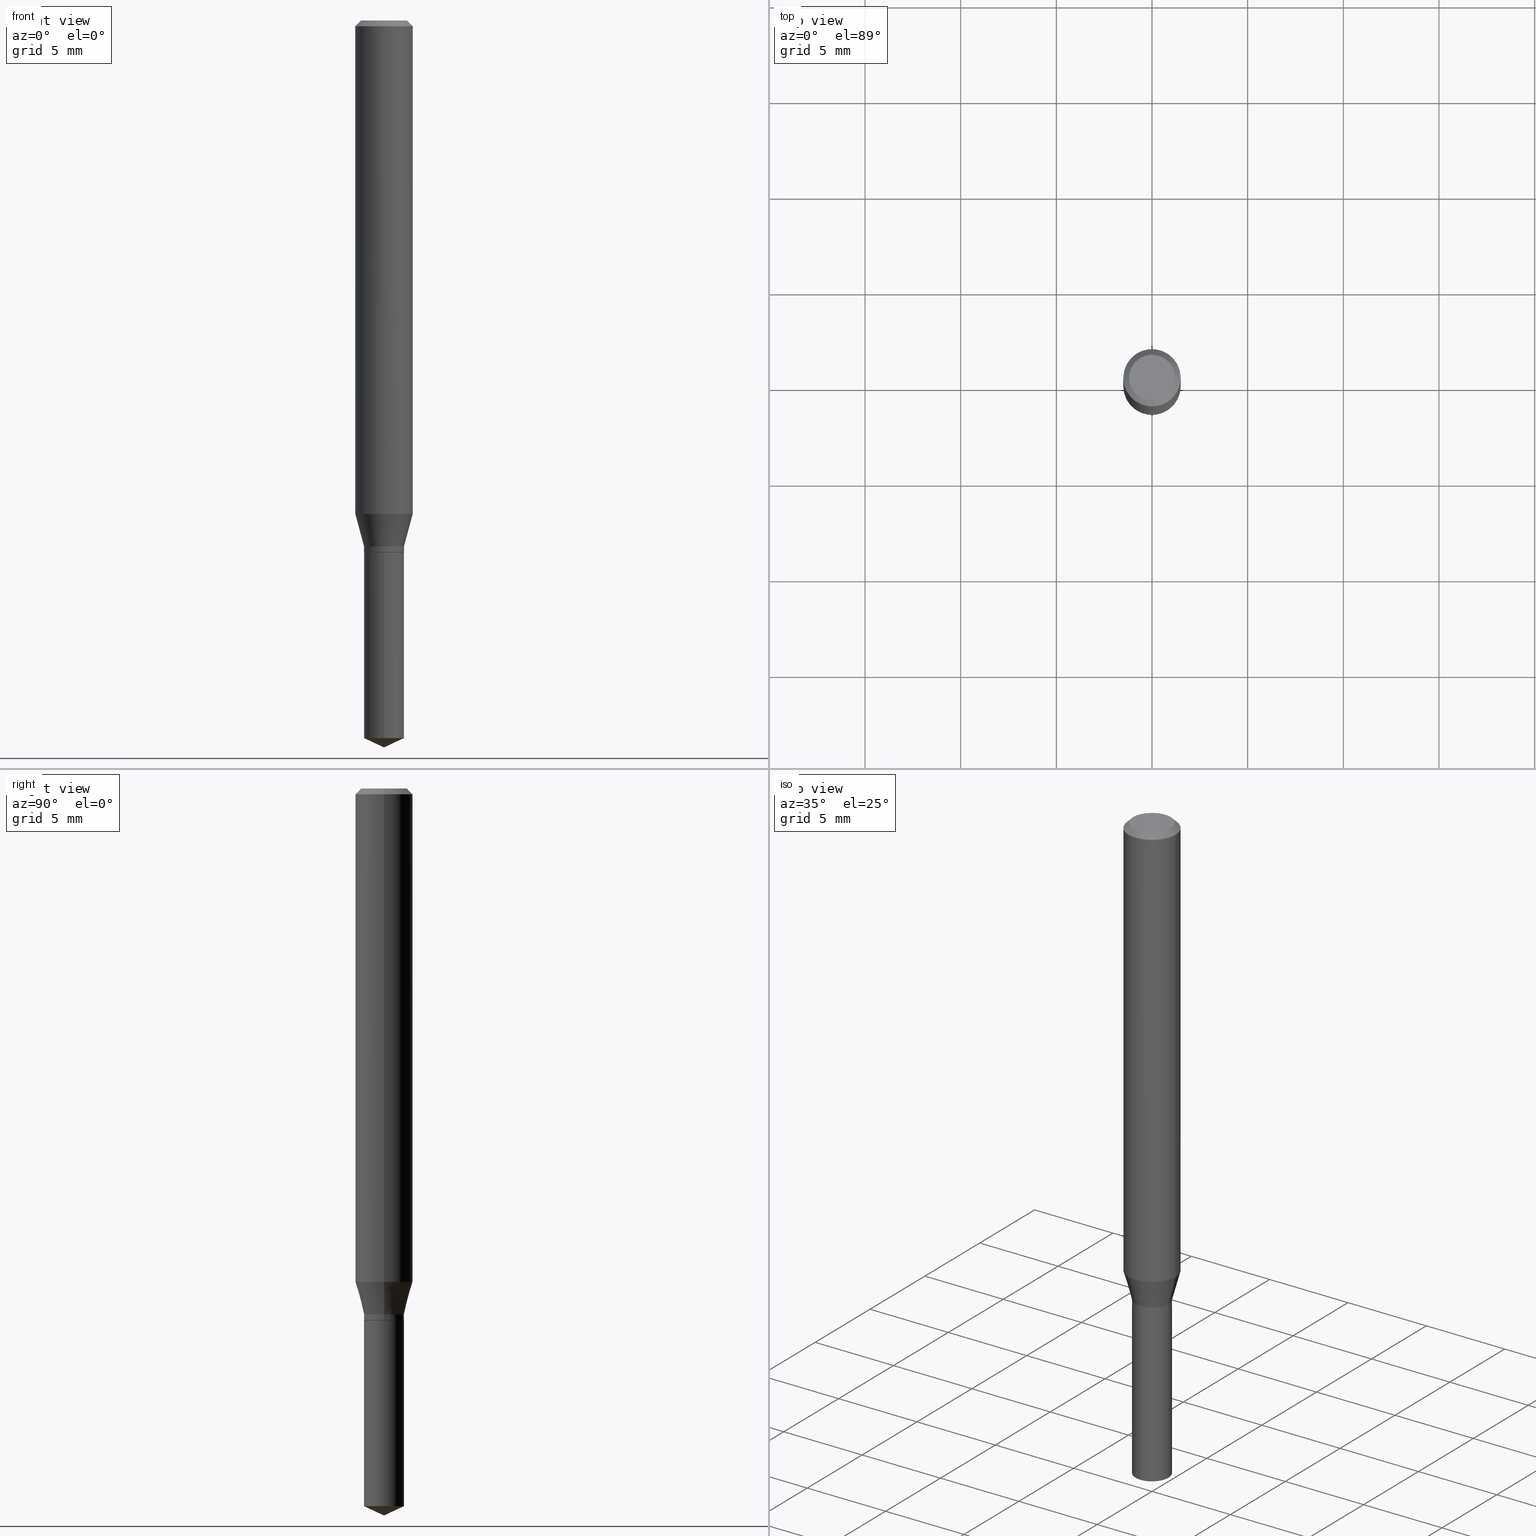
[diagram: canonical four-view strip — front | top / right | iso, engineering-drawing reading convention]
A machine part, canonical four-view strip (front | top / right | iso — engineering-drawing reading convention). The complete STEP part file that produces these views, byte-faithful:
ISO-10303-21;
HEADER;
FILE_DESCRIPTION (( 'STEP AP203' ),
    '1' );
FILE_NAME ('07611.STEP',
    '2024-04-23T23:44:37',
    ( '' ),
    ( '' ),
    'SwSTEP 2.0',
    'SolidWorks 2023',
    '' );
FILE_SCHEMA (( 'CONFIG_CONTROL_DESIGN' ));
ENDSEC;

DATA;
#1 = AXIS2_PLACEMENT_3D ( 'NONE', #198, #205, #444 ) ;
#2 = DATE_AND_TIME ( #344, #239 ) ;
#3 = ORIENTED_EDGE ( 'NONE', *, *, #184, .T. ) ;
#4 = ORIENTED_EDGE ( 'NONE', *, *, #128, .T. ) ;
#5 =( CONVERSION_BASED_UNIT ( 'INCH', #272 ) LENGTH_UNIT ( ) NAMED_UNIT ( #25 ) );
#6 = LINE ( 'NONE', #83, #480 ) ;
#7 = CARTESIAN_POINT ( 'NONE',  ( 2.676565608369631794E-29, -3.821426325363822773E-15, -1.094499999999999806 ) ) ;
#8 = EDGE_CURVE ( 'NONE', #144, #260, #29, .T. ) ;
#9 = PERSON_AND_ORGANIZATION ( #112, #459 ) ;
#10 = DIRECTION ( 'NONE',  ( 1.000000000000000000, -6.982962677686263555E-15, 0.000000000000000000 ) ) ;
#11 = ORIENTED_EDGE ( 'NONE', *, *, #39, .T. ) ;
#12 = PERSON_AND_ORGANIZATION ( #112, #459 ) ;
#13 = DIRECTION ( 'NONE',  ( 1.000000000000000000, -6.982962677686262766E-15, 0.000000000000000000 ) ) ;
#14 = DIRECTION ( 'NONE',  ( 0.7071067811865454633, -7.319954787623248157E-15, -0.7071067811865495711 ) ) ;
#15 = DIRECTION ( 'NONE',  ( -2.445468806185136597E-29, 3.491481338843145583E-15, 1.000000000000000000 ) ) ;
#16 = AXIS2_PLACEMENT_3D ( 'NONE', #195, #394, #48 ) ;
#17 = LINE ( 'NONE', #246, #256 ) ;
#18 = COORDINATED_UNIVERSAL_TIME_OFFSET ( 5, 0, .BEHIND. ) ;
#19 = DIRECTION ( 'NONE',  ( 1.000000000000000000, -6.982962677686265133E-15, 0.000000000000000000 ) ) ;
#20 = ORIENTED_EDGE ( 'NONE', *, *, #294, .F. ) ;
#21 = CARTESIAN_POINT ( 'NONE',  ( 2.483119954442715562E-29, -3.545237199966733054E-15, -1.015396290544516855 ) ) ;
#22 = VERTEX_POINT ( 'NONE', #147 ) ;
#23 = LOCAL_TIME ( 19, 44, 37.00000000000000000, #113 ) ;
#24 = LINE ( 'NONE', #261, #208 ) ;
#25 = DIMENSIONAL_EXPONENTS ( 1.000000000000000000, 0.000000000000000000, 0.000000000000000000, 0.000000000000000000, 0.000000000000000000, 0.000000000000000000, 0.000000000000000000 ) ;
#26 = DIRECTION ( 'NONE',  ( -2.445468806185136597E-29, 3.491481338843145583E-15, 1.000000000000000000 ) ) ;
#27 = ADVANCED_FACE ( 'NONE', ( #445 ), #253, .T. ) ;
#28 = VECTOR ( 'NONE', #70, 39.37007874015748143 ) ;
#29 = LINE ( 'NONE', #212, #28 ) ;
#30 = DIRECTION ( 'NONE',  ( -2.445468806185136597E-29, 3.491481338843145583E-15, 1.000000000000000000 ) ) ;
#31 = VERTEX_POINT ( 'NONE', #106 ) ;
#32 = ORIENTED_EDGE ( 'NONE', *, *, #367, .T. ) ;
#33 = EDGE_LOOP ( 'NONE', ( #368, #104, #11, #186 ) ) ;
#34 = CC_DESIGN_PERSON_AND_ORGANIZATION_ASSIGNMENT ( #175, #292, ( #55 ) ) ;
#35 = AXIS2_PLACEMENT_3D ( 'NONE', #209, #170, #248 ) ;
#36 = LOCAL_TIME ( 19, 44, 37.00000000000000000, #18 ) ;
#37 = CARTESIAN_POINT ( 'NONE',  ( 3.658651059288794515E-29, -5.223626456482161457E-15, -1.496099999999999985 ) ) ;
#38 = ORIENTED_EDGE ( 'NONE', *, *, #91, .T. ) ;
#39 = EDGE_CURVE ( 'NONE', #31, #334, #262, .T. ) ;
#40 = LINE ( 'NONE', #433, #330 ) ;
#41 = CARTESIAN_POINT ( 'NONE',  ( -0.04724000000000000421, 3.504923541997677355E-16, -3.380025165670481712E-19 ) ) ;
#42 = APPROVAL ( #85, 'UNSPECIFIED' ) ;
#43 = VERTEX_POINT ( 'NONE', #350 ) ;
#44 = FACE_OUTER_BOUND ( 'NONE', #296, .T. ) ;
#45 = CONICAL_SURFACE ( 'NONE', #101, 0.05905000000000000526, 0.7853981633974453924 ) ;
#46 = CARTESIAN_POINT ( 'NONE',  ( -0.05905000000000006771, 4.195754854663396409E-16, -2.904631170795525045E-30 ) ) ;
#47 = APPLICATION_CONTEXT ( 'configuration controlled 3d designs of mechanical parts and assemblies' ) ;
#48 = DIRECTION ( 'NONE',  ( 1.000000000000000000, -6.982962677686263555E-15, 0.000000000000000000 ) ) ;
#49 = CALENDAR_DATE ( 2024, 23, 4 ) ;
#50 = CARTESIAN_POINT ( 'NONE',  ( 0.05905000000000000526, -4.535783407291119586E-16, -0.01181000000000007565 ) ) ;
#51 = CC_DESIGN_DATE_AND_TIME_ASSIGNMENT ( #92, #245, ( #55 ) ) ;
#52 = PERSON_AND_ORGANIZATION ( #112, #459 ) ;
#53 = CARTESIAN_POINT ( 'NONE',  ( 2.676565608369631794E-29, -3.821426325363822773E-15, -1.094499999999999806 ) ) ;
#54 = CIRCLE ( 'NONE', #202, 0.04114999999999999908 ) ;
#55 = SECURITY_CLASSIFICATION ( '', '', #250 ) ;
#56 = APPROVAL_STATUS ( 'not_yet_approved' ) ;
#57 = PLANE ( 'NONE',  #469 ) ;
#58 = VERTEX_POINT ( 'NONE', #472 ) ;
#59 = FACE_OUTER_BOUND ( 'NONE', #33, .T. ) ;
#60 = ORIENTED_EDGE ( 'NONE', *, *, #317, .F. ) ;
#61 = DIRECTION ( 'NONE',  ( -6.982962677686265922E-15, -1.000000000000000000, 3.319377878085374529E-15 ) ) ;
#62 = CONICAL_SURFACE ( 'NONE', #169, 0.04114999999999999908, 0.2617993877991501295 ) ;
#63 = CARTESIAN_POINT ( 'NONE',  ( 0.000000000000000000, 0.000000000000000000, 0.000000000000000000 ) ) ;
#64 = CARTESIAN_POINT ( 'NONE',  ( -0.04114999999999999908, -3.486092769130770840E-15, -1.082200000000000051 ) ) ;
#65 = ORIENTED_EDGE ( 'NONE', *, *, #232, .F. ) ;
#66 = CARTESIAN_POINT ( 'NONE',  ( -0.05905000000000013016, -3.125661714500392772E-15, -1.015396290544516855 ) ) ;
#67 = VERTEX_POINT ( 'NONE', #41 ) ;
#68 = CONICAL_SURFACE ( 'NONE', #35, 0.04114999999999999908, 0.2617993877991501295 ) ;
#69 = FACE_OUTER_BOUND ( 'NONE', #234, .T. ) ;
#70 = DIRECTION ( 'NONE',  ( -6.328713451373372534E-15, -0.9063077870366488265, 0.4226182617407016062 ) ) ;
#71 = DIRECTION ( 'NONE',  ( -6.982962677686265922E-15, -1.000000000000000000, 6.638755756170749059E-15 ) ) ;
#72 = ORIENTED_EDGE ( 'NONE', *, *, #143, .T. ) ;
#73 = EDGE_CURVE ( 'NONE', #404, #334, #270, .T. ) ;
#74 = CARTESIAN_POINT ( 'NONE',  ( 0.000000000000000000, 0.000000000000000000, 0.000000000000000000 ) ) ;
#75 = FACE_OUTER_BOUND ( 'NONE', #417, .T. ) ;
#76 = ORIENTED_EDGE ( 'NONE', *, *, #89, .F. ) ;
#77 = VECTOR ( 'NONE', #293, 39.37007874015748854 ) ;
#78 = DIRECTION ( 'NONE',  ( -1.000000000000000000, 6.982962677686265922E-15, -4.876176775795935793E-29 ) ) ;
#79 = CC_DESIGN_APPROVAL ( #96, ( #55 ) ) ;
#80 = CARTESIAN_POINT ( 'NONE',  ( 2.675342873966538993E-29, -3.819680584694400481E-15, -1.093999999999999861 ) ) ;
#81 = EDGE_CURVE ( 'NONE', #299, #334, #399, .T. ) ;
#82 = MECHANICAL_CONTEXT ( 'NONE', #47, 'mechanical' ) ;
#83 = CARTESIAN_POINT ( 'NONE',  ( 0.04114999999999999908, -2.873489141867898412E-16, 2.006546743240027604E-30 ) ) ;
#84 = ORIENTED_EDGE ( 'NONE', *, *, #367, .F. ) ;
#85 = APPROVAL_STATUS ( 'not_yet_approved' ) ;
#86 = CIRCLE ( 'NONE', #413, 0.05905000000000013016 ) ;
#87 = DIRECTION ( 'NONE',  ( -6.982962677686265922E-15, -1.000000000000000000, 3.319377878085374529E-15 ) ) ;
#88 = LOCAL_TIME ( 19, 44, 37.00000000000000000, #235 ) ;
#89 = EDGE_CURVE ( 'NONE', #268, #58, #54, .T. ) ;
#90 = CARTESIAN_POINT ( 'NONE',  ( 0.04114999999999999908, -4.065830019082841950E-15, -1.082200000000000051 ) ) ;
#91 = EDGE_CURVE ( 'NONE', #334, #299, #185, .T. ) ;
#92 = DATE_AND_TIME ( #49, #36 ) ;
#93 = FACE_OUTER_BOUND ( 'NONE', #351, .T. ) ;
#94 = EDGE_CURVE ( 'NONE', #43, #268, #6, .T. ) ;
#95 = CARTESIAN_POINT ( 'NONE',  ( 2.676565608369631794E-29, -3.821426325363822773E-15, -1.094499999999999806 ) ) ;
#96 = APPROVAL ( #56, 'UNSPECIFIED' ) ;
#97 = DIRECTION ( 'NONE',  ( -6.982962677686265922E-15, -1.000000000000000000, 3.319377878085374529E-15 ) ) ;
#98 = ORIENTED_EDGE ( 'NONE', *, *, #94, .F. ) ;
#99 = CARTESIAN_POINT ( 'NONE',  ( 2.676565608369631794E-29, -3.821426325363822773E-15, -1.094499999999999806 ) ) ;
#100 = LINE ( 'NONE', #487, #285 ) ;
#101 = AXIS2_PLACEMENT_3D ( 'NONE', #233, #387, #419 ) ;
#102 = AXIS2_PLACEMENT_3D ( 'NONE', #74, #156, #349 ) ;
#103 = CARTESIAN_POINT ( 'NONE',  ( 0.000000000000000000, 0.000000000000000000, 0.000000000000000000 ) ) ;
#104 = ORIENTED_EDGE ( 'NONE', *, *, #317, .T. ) ;
#105 = DIRECTION ( 'NONE',  ( -2.445468806185136597E-29, 3.491481338843145583E-15, 1.000000000000000000 ) ) ;
#106 = CARTESIAN_POINT ( 'NONE',  ( 0.05905000000000013016, -3.957581146084108368E-15, -1.015396290544516855 ) ) ;
#107 = DIRECTION ( 'NONE',  ( 1.000000000000000000, -6.982962677686263555E-15, 0.000000000000000000 ) ) ;
#108 = EDGE_LOOP ( 'NONE', ( #20, #192, #38, #460 ) ) ;
#109 = CIRCLE ( 'NONE', #16, 0.04114999999999999908 ) ;
#110 = CARTESIAN_POINT ( 'NONE',  ( 2.646486342053554932E-29, -3.778481104896052208E-15, -1.082200000000000051 ) ) ;
#111 = ORIENTED_EDGE ( 'NONE', *, *, #187, .T. ) ;
#112 = PERSON ( 'UNSPECIFIED', 'UNSPECIFIED', 'UNSPECIFIED', ('UNSPECIFIED'), ('UNSPECIFIED'), ('UNSPECIFIED') ) ;
#113 = COORDINATED_UNIVERSAL_TIME_OFFSET ( 5, 0, .BEHIND. ) ;
#114 = CYLINDRICAL_SURFACE ( 'NONE', #318, 0.04114999999999999908 ) ;
#115 = ORIENTED_EDGE ( 'NONE', *, *, #232, .T. ) ;
#116 = PERSON_AND_ORGANIZATION ( #112, #459 ) ;
#117 = CARTESIAN_POINT ( 'NONE',  ( 0.05905000000000006771, -4.123439461173745257E-16, 2.879382386107503723E-30 ) ) ;
#118 = ORIENTED_EDGE ( 'NONE', *, *, #294, .T. ) ;
#119 = CONICAL_SURFACE ( 'NONE', #275, 84.42940631927420725, 1.134464013796315340 ) ;
#120 = APPLICATION_PROTOCOL_DEFINITION ( 'international standard', 'config_control_design', 1994, #47 ) ;
#121 = FACE_OUTER_BOUND ( 'NONE', #348, .T. ) ;
#122 = EDGE_LOOP ( 'NONE', ( #302, #111 ) ) ;
#123 = CARTESIAN_POINT ( 'NONE',  ( 2.646486342053554932E-29, -3.778481104896052208E-15, -1.082200000000000051 ) ) ;
#124 = CYLINDRICAL_SURFACE ( 'NONE', #102, 0.04114999999999999908 ) ;
#125 = DIRECTION ( 'NONE',  ( -2.445458899330790108E-29, 3.491495526022433599E-15, 1.000000000000000000 ) ) ;
#126 = VECTOR ( 'NONE', #224, 39.37007874015748854 ) ;
#127 = CARTESIAN_POINT ( 'NONE',  ( 8.265746106709734507E-48, -1.180129479067563789E-33, -3.380025165646692144E-19 ) ) ;
#128 = EDGE_CURVE ( 'NONE', #345, #299, #390, .T. ) ;
#129 = AXIS2_PLACEMENT_3D ( 'NONE', #103, #410, #454 ) ;
#130 = ADVANCED_FACE ( 'NONE', ( #361 ), #357, .T. ) ;
#131 = DIRECTION ( 'NONE',  ( -2.445468806185136597E-29, 3.491481338843145583E-15, 1.000000000000000000 ) ) ;
#132 = CC_DESIGN_PERSON_AND_ORGANIZATION_ASSIGNMENT ( #12, #163, ( #291 ) ) ;
#133 = DIRECTION ( 'NONE',  ( 1.000000000000000000, -6.982962677686266711E-15, 4.876176775795936353E-29 ) ) ;
#134 = AXIS2_PLACEMENT_3D ( 'NONE', #180, #207, #133 ) ;
#135 = ORIENTED_EDGE ( 'NONE', *, *, #452, .F. ) ;
#136 = CARTESIAN_POINT ( 'NONE',  ( -0.05905000000000000526, -1.373660311822895307E-15, -0.01181000000000007565 ) ) ;
#137 = DIRECTION ( 'NONE',  ( -2.445458899330790108E-29, 3.491495526022433205E-15, 1.000000000000000000 ) ) ;
#138 = DIRECTION ( 'NONE',  ( -2.445458899330790108E-29, 3.491495526022433205E-15, 1.000000000000000000 ) ) ;
#139 = CC_DESIGN_PERSON_AND_ORGANIZATION_ASSIGNMENT ( #9, #197, ( #191 ) ) ;
#140 = CIRCLE ( 'NONE', #220, 0.04724000000000000421 ) ;
#141 = LOCAL_TIME ( 19, 44, 37.00000000000000000, #326 ) ;
#142 = FACE_OUTER_BOUND ( 'NONE', #483, .T. ) ;
#143 = EDGE_CURVE ( 'NONE', #305, #43, #247, .T. ) ;
#144 = VERTEX_POINT ( 'NONE', #37 ) ;
#145 = ADVANCED_FACE ( 'NONE', ( #121 ), #114, .T. ) ;
#146 = DIRECTION ( 'NONE',  ( 2.445468806185136597E-29, -3.491481338843145583E-15, -1.000000000000000000 ) ) ;
#147 = CARTESIAN_POINT ( 'NONE',  ( -0.04064999999999999863, -3.529941476103230709E-15, -1.094499999999999806 ) ) ;
#148 = AXIS2_PLACEMENT_3D ( 'NONE', #7, #426, #389 ) ;
#149 = DATE_TIME_ROLE ( 'creation_date' ) ;
#150 = ORIENTED_EDGE ( 'NONE', *, *, #252, .F. ) ;
#151 = ORIENTED_EDGE ( 'NONE', *, *, #336, .T. ) ;
#152 =( NAMED_UNIT ( * ) SI_UNIT ( $, .STERADIAN. ) SOLID_ANGLE_UNIT ( ) );
#153 = DIRECTION ( 'NONE',  ( -0.7071067811865454633, 2.468850131082235367E-15, -0.7071067811865495711 ) ) ;
#154 = ADVANCED_FACE ( 'NONE', ( #278 ), #45, .T. ) ;
#155 = VERTEX_POINT ( 'NONE', #161 ) ;
#156 = DIRECTION ( 'NONE',  ( -2.445468806185136597E-29, 3.491481338843145583E-15, 1.000000000000000000 ) ) ;
#157 = ORIENTED_EDGE ( 'NONE', *, *, #184, .F. ) ;
#158 = CONICAL_SURFACE ( 'NONE', #442, 0.04064999999999999863, 0.7853981633974141952 ) ;
#159 = VECTOR ( 'NONE', #325, 39.37007874015748143 ) ;
#160 = CARTESIAN_POINT ( 'NONE',  ( -9.261924752013118283E-28, 1.322368428517963298E-13, 37.87397874015748300 ) ) ;
#161 = CARTESIAN_POINT ( 'NONE',  ( 0.04064999999999999863, -4.105283758211769509E-15, -1.094499999999999806 ) ) ;
#162 = ORIENTED_EDGE ( 'NONE', *, *, #440, .T. ) ;
#163 = PERSON_AND_ORGANIZATION_ROLE ( 'creator' ) ;
#164 = DIRECTION ( 'NONE',  ( -2.445458899330790108E-29, 3.491495526022433205E-15, 1.000000000000000000 ) ) ;
#165 = EDGE_CURVE ( 'NONE', #174, #223, #431, .T. ) ;
#166 = DIRECTION ( 'NONE',  ( 1.000000000000000000, -6.982962677686268288E-15, 0.000000000000000000 ) ) ;
#167 = AXIS2_PLACEMENT_3D ( 'NONE', #236, #273, #200 ) ;
#168 = CARTESIAN_POINT ( 'NONE',  ( 2.676565608369631794E-29, -3.821426325363822773E-15, -1.094499999999999806 ) ) ;
#169 = AXIS2_PLACEMENT_3D ( 'NONE', #110, #26, #107 ) ;
#170 = DIRECTION ( 'NONE',  ( -2.445468806185136597E-29, 3.491481338843145583E-15, 1.000000000000000000 ) ) ;
#171 = EDGE_CURVE ( 'NONE', #67, #299, #40, .T. ) ;
#172 = PERSON_AND_ORGANIZATION_ROLE ( 'creator' ) ;
#173 = FACE_OUTER_BOUND ( 'NONE', #375, .T. ) ;
#174 = VERTEX_POINT ( 'NONE', #241 ) ;
#175 = PERSON_AND_ORGANIZATION ( #112, #459 ) ;
#176 = CYLINDRICAL_SURFACE ( 'NONE', #134, 0.05905000000000006771 ) ;
#177 = CC_DESIGN_SECURITY_CLASSIFICATION ( #55, ( #301 ) ) ;
#178 = ORIENTED_EDGE ( 'NONE', *, *, #252, .T. ) ;
#179 = EDGE_CURVE ( 'NONE', #58, #268, #109, .T. ) ;
#180 = CARTESIAN_POINT ( 'NONE',  ( 0.000000000000000000, 0.000000000000000000, 0.000000000000000000 ) ) ;
#181 = ADVANCED_FACE ( 'NONE', ( #75 ), #382, .F. ) ;
#182 = CYLINDRICAL_SURFACE ( 'NONE', #194, 0.05905000000000006771 ) ;
#183 = DIRECTION ( 'NONE',  ( -2.445468806185136597E-29, 3.491481338843145583E-15, 1.000000000000000000 ) ) ;
#184 = EDGE_CURVE ( 'NONE', #305, #58, #401, .T. ) ;
#185 = CIRCLE ( 'NONE', #228, 0.05905000000000000526 ) ;
#186 = ORIENTED_EDGE ( 'NONE', *, *, #81, .F. ) ;
#187 = EDGE_CURVE ( 'NONE', #223, #412, #391, .T. ) ;
#188 = DIRECTION ( 'NONE',  ( -6.982962677686265922E-15, -1.000000000000000000, 6.638755756170749059E-15 ) ) ;
#189 = EDGE_LOOP ( 'NONE', ( #32, #311, #312, #313 ) ) ;
#190 = APPROVAL_ROLE ( '' ) ;
#191 = PRODUCT ( '07611', '07611', '', ( #82 ) ) ;
#192 = ORIENTED_EDGE ( 'NONE', *, *, #73, .T. ) ;
#193 = EDGE_LOOP ( 'NONE', ( #376, #402, #150, #328 ) ) ;
#194 = AXIS2_PLACEMENT_3D ( 'NONE', #63, #30, #485 ) ;
#195 = CARTESIAN_POINT ( 'NONE',  ( 2.646486342053554932E-29, -3.778481104896052208E-15, -1.082200000000000051 ) ) ;
#196 = ORIENTED_EDGE ( 'NONE', *, *, #466, .T. ) ;
#197 = PERSON_AND_ORGANIZATION_ROLE ( 'design_owner' ) ;
#198 = CARTESIAN_POINT ( 'NONE',  ( 2.676565608369631794E-29, -3.821426325363822773E-15, -1.094499999999999806 ) ) ;
#199 = ORIENTED_EDGE ( 'NONE', *, *, #94, .T. ) ;
#200 = DIRECTION ( 'NONE',  ( 1.000000000000000000, -6.982962677686268288E-15, 0.000000000000000000 ) ) ;
#201 = ORIENTED_EDGE ( 'NONE', *, *, #8, .F. ) ;
#202 = AXIS2_PLACEMENT_3D ( 'NONE', #123, #204, #422 ) ;
#203 = APPROVAL_DATE_TIME ( #360, #42 ) ;
#204 = DIRECTION ( 'NONE',  ( -2.445468806185136597E-29, 3.491481338843145583E-15, 1.000000000000000000 ) ) ;
#205 = DIRECTION ( 'NONE',  ( -2.438088387897960049E-29, 3.491481338843145188E-15, 1.000000000000000000 ) ) ;
#206 = APPROVAL_DATE_TIME ( #324, #96 ) ;
#207 = DIRECTION ( 'NONE',  ( -2.445468806185136597E-29, 3.491481338843145583E-15, 1.000000000000000000 ) ) ;
#208 = VECTOR ( 'NONE', #222, 39.37007874015748854 ) ;
#209 = CARTESIAN_POINT ( 'NONE',  ( 2.646486342053554932E-29, -3.778481104896052208E-15, -1.082200000000000051 ) ) ;
#210 = CIRCLE ( 'NONE', #347, 0.04724000000000000421 ) ;
#211 = CARTESIAN_POINT ( 'NONE',  ( 2.676565608369631794E-29, -3.821426325363822773E-15, -1.094499999999999806 ) ) ;
#212 = CARTESIAN_POINT ( 'NONE',  ( 3.658651059288795076E-29, -5.223626456482161457E-15, -1.496099999999999985 ) ) ;
#213 = ORIENTED_EDGE ( 'NONE', *, *, #400, .F. ) ;
#214 = VECTOR ( 'NONE', #14, 39.37007874015748143 ) ;
#215 = AXIS2_PLACEMENT_3D ( 'NONE', #372, #438, #396 ) ;
#216 = ADVANCED_FACE ( 'NONE', ( #93 ), #68, .T. ) ;
#217 = DIRECTION ( 'NONE',  ( -2.445458899330790108E-29, 3.491495526022433205E-15, 1.000000000000000000 ) ) ;
#218 = EDGE_CURVE ( 'NONE', #268, #31, #17, .T. ) ;
#219 = ORIENTED_EDGE ( 'NONE', *, *, #466, .F. ) ;
#220 = AXIS2_PLACEMENT_3D ( 'NONE', #127, #15, #482 ) ;
#221 = AXIS2_PLACEMENT_3D ( 'NONE', #489, #146, #306 ) ;
#222 = DIRECTION ( 'NONE',  ( -0.7071067811865232589, 7.493145998870265808E-15, 0.7071067811865715536 ) ) ;
#223 = VERTEX_POINT ( 'NONE', #398 ) ;
#224 = DIRECTION ( 'NONE',  ( 0.7071067811865232589, -2.468850131082003836E-15, 0.7071067811865715536 ) ) ;
#225 = ORIENTED_EDGE ( 'NONE', *, *, #179, .F. ) ;
#226 = DIRECTION ( 'NONE',  ( -2.445468806185136597E-29, 3.491481338843145583E-15, 1.000000000000000000 ) ) ;
#227 = EDGE_LOOP ( 'NONE', ( #213, #196, #470, #340 ) ) ;
#228 = AXIS2_PLACEMENT_3D ( 'NONE', #355, #468, #166 ) ;
#229 = ADVANCED_FACE ( 'NONE', ( #365 ), #158, .T. ) ;
#230 = AXIS2_PLACEMENT_3D ( 'NONE', #421, #393, #78 ) ;
#231 = DIRECTION ( 'NONE',  ( 0.000000000000000000, 0.000000000000000000, 1.000000000000000000 ) ) ;
#232 = EDGE_CURVE ( 'NONE', #155, #22, #300, .T. ) ;
#233 = CARTESIAN_POINT ( 'NONE',  ( 2.888098660104664642E-31, -4.123439461173780879E-17, -0.01181000000000007565 ) ) ;
#234 = EDGE_LOOP ( 'NONE', ( #178, #4, #488, #456 ) ) ;
#235 = COORDINATED_UNIVERSAL_TIME_OFFSET ( 5, 0, .BEHIND. ) ;
#236 = CARTESIAN_POINT ( 'NONE',  ( 2.888098660104664642E-31, -4.123439461173780879E-17, -0.01181000000000007565 ) ) ;
#237 = EDGE_CURVE ( 'NONE', #144, #174, #363, .T. ) ;
#238 = AXIS2_PLACEMENT_3D ( 'NONE', #80, #428, #10 ) ;
#239 = LOCAL_TIME ( 19, 44, 37.00000000000000000, #283 ) ;
#240 = CALENDAR_DATE ( 2024, 23, 4 ) ;
#241 = CARTESIAN_POINT ( 'NONE',  ( 2.923883357653172610E-16, 0.04114999999999483654, -1.476911439866922082 ) ) ;
#242 = PERSON_AND_ORGANIZATION ( #112, #459 ) ;
#243 = DIRECTION ( 'NONE',  ( 1.000000000000000000, -6.982962677686262766E-15, 0.000000000000000000 ) ) ;
#244 = ADVANCED_FACE ( 'NONE', ( #441 ), #57, .F. ) ;
#245 = DATE_TIME_ROLE ( 'classification_date' ) ;
#246 = CARTESIAN_POINT ( 'NONE',  ( 0.04114999999999999908, -4.065830019082841950E-15, -1.082200000000000051 ) ) ;
#247 = CIRCLE ( 'NONE', #238, 0.04114999999999999908 ) ;
#248 = DIRECTION ( 'NONE',  ( 1.000000000000000000, -6.982962677686263555E-15, 0.000000000000000000 ) ) ;
#249 = ORIENTED_EDGE ( 'NONE', *, *, #8, .T. ) ;
#250 = SECURITY_CLASSIFICATION_LEVEL ( 'unclassified' ) ;
#251 = DIRECTION ( 'NONE',  ( -2.445468806185136597E-29, 3.491481338843145583E-15, 1.000000000000000000 ) ) ;
#252 = EDGE_CURVE ( 'NONE', #31, #345, #86, .T. ) ;
#253 = CYLINDRICAL_SURFACE ( 'NONE', #435, 0.04114999999999999908 ) ;
#254 = CARTESIAN_POINT ( 'NONE',  ( -0.04114999999999999908, 2.923883357652812199E-16, -2.024141789639893566E-30 ) ) ;
#255 = DIRECTION ( 'NONE',  ( -2.445458899330790108E-29, 3.491495526022433599E-15, 1.000000000000000000 ) ) ;
#256 = VECTOR ( 'NONE', #478, 39.37007874015747433 ) ;
#257 = AXIS2_PLACEMENT_3D ( 'NONE', #337, #105, #258 ) ;
#258 = DIRECTION ( 'NONE',  ( 1.000000000000000000, -6.982962677686263555E-15, 0.000000000000000000 ) ) ;
#259 = ADVANCED_FACE ( 'NONE', ( #173 ), #119, .T. ) ;
#260 = VERTEX_POINT ( 'NONE', #479 ) ;
#261 = CARTESIAN_POINT ( 'NONE',  ( -0.04064999999999999863, -3.532590703277341910E-15, -1.094499999999999806 ) ) ;
#262 = LINE ( 'NONE', #117, #315 ) ;
#263 = CARTESIAN_POINT ( 'NONE',  ( 8.265746106709734507E-48, -1.180129479067563789E-33, -3.380025165646692144E-19 ) ) ;
#264 = CLOSED_SHELL ( 'NONE', ( #130, #154, #362, #406, #447, #471, #216, #271, #455, #463, #181, #229 ) ) ;
#265 = EDGE_LOOP ( 'NONE', ( #462, #416, #342, #274 ) ) ;
#266 = MANIFOLD_SOLID_BREP ( 'Body-Move/Copy2[1]', #467 ) ;
#267 = PLANE ( 'NONE',  #230 ) ;
#268 = VERTEX_POINT ( 'NONE', #90 ) ;
#269 = CALENDAR_DATE ( 2024, 23, 4 ) ;
#270 = LINE ( 'NONE', #323, #214 ) ;
#271 = ADVANCED_FACE ( 'NONE', ( #59 ), #176, .T. ) ;
#272 = LENGTH_MEASURE_WITH_UNIT ( LENGTH_MEASURE( 0.02539999999999999897 ), #320 );
#273 = DIRECTION ( 'NONE',  ( -2.445468806185136597E-29, 3.491481338843145583E-15, 1.000000000000000000 ) ) ;
#274 = ORIENTED_EDGE ( 'NONE', *, *, #81, .T. ) ;
#275 = AXIS2_PLACEMENT_3D ( 'NONE', #473, #288, #333 ) ;
#276 = CC_DESIGN_APPROVAL ( #42, ( #291 ) ) ;
#277 = FACE_OUTER_BOUND ( 'NONE', #279, .T. ) ;
#278 = FACE_OUTER_BOUND ( 'NONE', #108, .T. ) ;
#279 = EDGE_LOOP ( 'NONE', ( #157, #72, #199, #225 ) ) ;
#280 = CC_DESIGN_DATE_AND_TIME_ASSIGNMENT ( #2, #149, ( #291 ) ) ;
#281 = PERSON_AND_ORGANIZATION ( #112, #459 ) ;
#282 = DIRECTION ( 'NONE',  ( -2.445468806185136877E-29, 3.491481338843145188E-15, 1.000000000000000000 ) ) ;
#283 = COORDINATED_UNIVERSAL_TIME_OFFSET ( 5, 0, .BEHIND. ) ;
#284 = CARTESIAN_POINT ( 'NONE',  ( 2.676565608369631794E-29, -3.821426325363822773E-15, -1.094499999999999806 ) ) ;
#285 = VECTOR ( 'NONE', #255, 39.37007874015748143 ) ;
#286 = APPROVAL_PERSON_ORGANIZATION ( #281, #42, #190 ) ;
#287 = APPROVAL_DATE_TIME ( #418, #415 ) ;
#288 = DIRECTION ( 'NONE',  ( -2.445458899330790108E-29, 3.491495526022433205E-15, 1.000000000000000000 ) ) ;
#289 = DESIGN_CONTEXT ( 'detailed design', #427, 'design' ) ;
#290 = SHAPE_DEFINITION_REPRESENTATION ( #343, #449 ) ;
#291 = PRODUCT_DEFINITION ( 'UNKNOWN', '', #301, #289 ) ;
#292 = PERSON_AND_ORGANIZATION_ROLE ( 'classification_officer' ) ;
#293 = DIRECTION ( 'NONE',  ( 6.439704144417027987E-15, 0.9063077870366519351, 0.4226182617406953335 ) ) ;
#294 = EDGE_CURVE ( 'NONE', #404, #67, #140, .T. ) ;
#295 = VECTOR ( 'NONE', #374, 39.37007874015747433 ) ;
#296 = EDGE_LOOP ( 'NONE', ( #201, #425, #84 ) ) ;
#297 = CC_DESIGN_PERSON_AND_ORGANIZATION_ASSIGNMENT ( #52, #172, ( #301 ) ) ;
#298 = CARTESIAN_POINT ( 'NONE',  ( -0.04114999999999999908, -3.506692509029945371E-15, -1.093999999999999861 ) ) ;
#299 = VERTEX_POINT ( 'NONE', #136 ) ;
#300 = CIRCLE ( 'NONE', #308, 0.04064999999999999863 ) ;
#301 = PRODUCT_DEFINITION_FORMATION_WITH_SPECIFIED_SOURCE ( 'ANY', '', #191, .NOT_KNOWN. ) ;
#302 = ORIENTED_EDGE ( 'NONE', *, *, #310, .T. ) ;
#303 = FACE_OUTER_BOUND ( 'NONE', #193, .T. ) ;
#304 = LINE ( 'NONE', #64, #295 ) ;
#305 = VERTEX_POINT ( 'NONE', #298 ) ;
#306 = DIRECTION ( 'NONE',  ( -1.000000000000000000, 6.982962677686265922E-15, 0.000000000000000000 ) ) ;
#307 = ORIENTED_EDGE ( 'NONE', *, *, #434, .T. ) ;
#308 = AXIS2_PLACEMENT_3D ( 'NONE', #99, #131, #243 ) ;
#309 = APPROVAL_STATUS ( 'not_yet_approved' ) ;
#310 = EDGE_CURVE ( 'NONE', #412, #223, #436, .T. ) ;
#311 = ORIENTED_EDGE ( 'NONE', *, *, #165, .T. ) ;
#312 = ORIENTED_EDGE ( 'NONE', *, *, #310, .F. ) ;
#313 = ORIENTED_EDGE ( 'NONE', *, *, #336, .F. ) ;
#314 = DIRECTION ( 'NONE',  ( -2.445468806185136877E-29, 3.491481338843145188E-15, 1.000000000000000000 ) ) ;
#315 = VECTOR ( 'NONE', #314, 39.37007874015748143 ) ;
#316 = EDGE_LOOP ( 'NONE', ( #115, #453, #490, #420 ) ) ;
#317 = EDGE_CURVE ( 'NONE', #345, #31, #338, .T. ) ;
#318 = AXIS2_PLACEMENT_3D ( 'NONE', #386, #164, #87 ) ;
#319 =( GEOMETRIC_REPRESENTATION_CONTEXT ( 3 ) GLOBAL_UNCERTAINTY_ASSIGNED_CONTEXT ( ( #356 ) ) GLOBAL_UNIT_ASSIGNED_CONTEXT ( ( #5, #352, #152 ) ) REPRESENTATION_CONTEXT ( 'NONE', 'WORKASPACE' ) );
#320 =( LENGTH_UNIT ( ) NAMED_UNIT ( * ) SI_UNIT ( $, .METRE. ) );
#321 = EDGE_LOOP ( 'NONE', ( #307, #118 ) ) ;
#322 = CARTESIAN_POINT ( 'NONE',  ( 2.923883357653079426E-16, 0.04114999999999617575, -1.094500000000000028 ) ) ;
#323 = CARTESIAN_POINT ( 'NONE',  ( 0.05905000000000000526, -4.463468013801467941E-16, -0.01181000000000007565 ) ) ;
#324 = DATE_AND_TIME ( #477, #141 ) ;
#325 = DIRECTION ( 'NONE',  ( -2.445468806185136877E-29, 3.491481338843145188E-15, 1.000000000000000000 ) ) ;
#326 = COORDINATED_UNIVERSAL_TIME_OFFSET ( 5, 0, .BEHIND. ) ;
#327 = DIRECTION ( 'NONE',  ( -2.445458899330790108E-29, 3.491495526022433205E-15, 1.000000000000000000 ) ) ;
#328 = ORIENTED_EDGE ( 'NONE', *, *, #218, .F. ) ;
#329 = CC_DESIGN_PERSON_AND_ORGANIZATION_ASSIGNMENT ( #395, #439, ( #301 ) ) ;
#330 = VECTOR ( 'NONE', #153, 39.37007874015748143 ) ;
#331 = APPROVAL_ROLE ( '' ) ;
#332 = CIRCLE ( 'NONE', #148, 0.04064999999999999863 ) ;
#333 = DIRECTION ( 'NONE',  ( -6.982962677686266711E-15, -1.000000000000000000, 3.520397390770459392E-15 ) ) ;
#334 = VERTEX_POINT ( 'NONE', #50 ) ;
#335 = CARTESIAN_POINT ( 'NONE',  ( -2.873489141867631186E-16, -0.04115000000000382241, -1.094499999999999806 ) ) ;
#336 = EDGE_CURVE ( 'NONE', #260, #412, #100, .T. ) ;
#337 = CARTESIAN_POINT ( 'NONE',  ( 2.675342873966538993E-29, -3.819680584694400481E-15, -1.093999999999999861 ) ) ;
#338 = CIRCLE ( 'NONE', #215, 0.05905000000000013016 ) ;
#339 = CONICAL_SURFACE ( 'NONE', #424, 84.42940631927420725, 1.134464013796315340 ) ;
#340 = ORIENTED_EDGE ( 'NONE', *, *, #143, .F. ) ;
#341 = FACE_OUTER_BOUND ( 'NONE', #265, .T. ) ;
#342 = ORIENTED_EDGE ( 'NONE', *, *, #171, .T. ) ;
#343 = PRODUCT_DEFINITION_SHAPE ( 'NONE', 'NONE',  #291 ) ;
#344 = CALENDAR_DATE ( 2024, 23, 4 ) ;
#345 = VERTEX_POINT ( 'NONE', #66 ) ;
#346 = AXIS2_PLACEMENT_3D ( 'NONE', #95, #327, #97 ) ;
#347 = AXIS2_PLACEMENT_3D ( 'NONE', #263, #183, #377 ) ;
#348 = EDGE_LOOP ( 'NONE', ( #429, #358, #151, #388 ) ) ;
#349 = DIRECTION ( 'NONE',  ( 1.000000000000000000, -6.982962677686265922E-15, 4.876176775795935793E-29 ) ) ;
#350 = CARTESIAN_POINT ( 'NONE',  ( 0.04114999999999999908, -4.107029498881190224E-15, -1.093999999999999861 ) ) ;
#351 = EDGE_LOOP ( 'NONE', ( #384, #381, #481, #60 ) ) ;
#352 =( NAMED_UNIT ( * ) PLANE_ANGLE_UNIT ( ) SI_UNIT ( $, .RADIAN. ) );
#353 = EDGE_CURVE ( 'NONE', #155, #43, #380, .T. ) ;
#354 = CARTESIAN_POINT ( 'NONE',  ( 0.000000000000000000, 0.000000000000000000, 0.000000000000000000 ) ) ;
#355 = CARTESIAN_POINT ( 'NONE',  ( 2.888098660104664642E-31, -4.123439461173780879E-17, -0.01181000000000007565 ) ) ;
#356 = UNCERTAINTY_MEASURE_WITH_UNIT (LENGTH_MEASURE( 1.000000000000000082E-05 ), #5, 'distance_accuracy_value', 'NONE');
#357 = CONICAL_SURFACE ( 'NONE', #364, 0.04064999999999999863, 0.7853981633974141952 ) ;
#358 = ORIENTED_EDGE ( 'NONE', *, *, #452, .T. ) ;
#359 = APPROVAL_PERSON_ORGANIZATION ( #242, #96, #331 ) ;
#360 = DATE_AND_TIME ( #240, #88 ) ;
#361 = FACE_OUTER_BOUND ( 'NONE', #316, .T. ) ;
#362 = ADVANCED_FACE ( 'NONE', ( #69 ), #182, .T. ) ;
#363 = LINE ( 'NONE', #369, #77 ) ;
#364 = AXIS2_PLACEMENT_3D ( 'NONE', #284, #226, #13 ) ;
#365 = FACE_OUTER_BOUND ( 'NONE', #227, .T. ) ;
#366 = DIRECTION ( 'NONE',  ( 2.445458899330789267E-29, -3.491495526022433599E-15, -1.000000000000000000 ) ) ;
#367 = EDGE_CURVE ( 'NONE', #260, #174, #407, .T. ) ;
#368 = ORIENTED_EDGE ( 'NONE', *, *, #128, .F. ) ;
#369 = CARTESIAN_POINT ( 'NONE',  ( 3.658672935554494692E-29, -5.223595400746700193E-15, -1.496099999999999985 ) ) ;
#370 = CARTESIAN_POINT ( 'NONE',  ( 2.676565608369631794E-29, -3.821426325363822773E-15, -1.094499999999999806 ) ) ;
#371 = CIRCLE ( 'NONE', #257, 0.04114999999999999908 ) ;
#372 = CARTESIAN_POINT ( 'NONE',  ( 2.483119954442715562E-29, -3.545237199966733054E-15, -1.015396290544516855 ) ) ;
#373 = CARTESIAN_POINT ( 'NONE',  ( 3.611737067198096495E-29, -5.156614156758976833E-15, -1.476911439866921860 ) ) ;
#374 = DIRECTION ( 'NONE',  ( -0.2588190451025214611, 5.211531920934551042E-15, 0.9659258262890682012 ) ) ;
#375 = EDGE_LOOP ( 'NONE', ( #378, #249, #135 ) ) ;
#376 = ORIENTED_EDGE ( 'NONE', *, *, #89, .T. ) ;
#377 = DIRECTION ( 'NONE',  ( 1.000000000000000000, -6.982962677686266711E-15, 4.876185090822587894E-29 ) ) ;
#378 = ORIENTED_EDGE ( 'NONE', *, *, #237, .F. ) ;
#379 = PRODUCT_RELATED_PRODUCT_CATEGORY ( 'detail', '', ( #191 ) ) ;
#380 = LINE ( 'NONE', #409, #126 ) ;
#381 = ORIENTED_EDGE ( 'NONE', *, *, #179, .T. ) ;
#382 = PLANE ( 'NONE',  #1 ) ;
#383 = CIRCLE ( 'NONE', #408, 0.04114999999999999908 ) ;
#384 = ORIENTED_EDGE ( 'NONE', *, *, #397, .F. ) ;
#385 = DIRECTION ( 'NONE',  ( 1.000000000000000000, 0.000000000000000000, 0.000000000000000000 ) ) ;
#386 = CARTESIAN_POINT ( 'NONE',  ( 2.676565608369631794E-29, -3.821426325363822773E-15, -1.094499999999999806 ) ) ;
#387 = DIRECTION ( 'NONE',  ( 2.445468806185136597E-29, -3.491481338843145583E-15, -1.000000000000000000 ) ) ;
#388 = ORIENTED_EDGE ( 'NONE', *, *, #187, .F. ) ;
#389 = DIRECTION ( 'NONE',  ( 1.000000000000000000, -6.982962677686262766E-15, 0.000000000000000000 ) ) ;
#390 = LINE ( 'NONE', #46, #457 ) ;
#391 = CIRCLE ( 'NONE', #346, 0.04114999999999999908 ) ;
#392 = APPROVAL_PERSON_ORGANIZATION ( #116, #415, #461 ) ;
#393 = DIRECTION ( 'NONE',  ( 2.438088387897960049E-29, -3.491481338843145188E-15, -1.000000000000000000 ) ) ;
#394 = DIRECTION ( 'NONE',  ( -2.445468806185136597E-29, 3.491481338843145583E-15, 1.000000000000000000 ) ) ;
#395 = PERSON_AND_ORGANIZATION ( #112, #459 ) ;
#396 = DIRECTION ( 'NONE',  ( 1.000000000000000000, -6.982962677686265133E-15, 0.000000000000000000 ) ) ;
#397 = EDGE_CURVE ( 'NONE', #58, #345, #304, .T. ) ;
#398 = CARTESIAN_POINT ( 'NONE',  ( 2.923883357653173103E-16, 0.04114999999999617575, -1.094500000000000028 ) ) ;
#399 = CIRCLE ( 'NONE', #167, 0.05905000000000000526 ) ;
#400 = EDGE_CURVE ( 'NONE', #22, #305, #24, .T. ) ;
#401 = LINE ( 'NONE', #254, #159 ) ;
#402 = ORIENTED_EDGE ( 'NONE', *, *, #397, .T. ) ;
#403 = DIRECTION ( 'NONE',  ( -2.445468806185136597E-29, 3.491481338843145583E-15, 1.000000000000000000 ) ) ;
#404 = VERTEX_POINT ( 'NONE', #411 ) ;
#405 = DIRECTION ( 'NONE',  ( -2.445458899330790108E-29, 3.491495526022433205E-15, 1.000000000000000000 ) ) ;
#406 = ADVANCED_FACE ( 'NONE', ( #303 ), #62, .T. ) ;
#407 = CIRCLE ( 'NONE', #423, 0.04114999999999999908 ) ;
#408 = AXIS2_PLACEMENT_3D ( 'NONE', #414, #217, #188 ) ;
#409 = CARTESIAN_POINT ( 'NONE',  ( 0.04064999999999999863, -4.105283758211769509E-15, -1.094499999999999806 ) ) ;
#410 = DIRECTION ( 'NONE',  ( -2.445468806185136597E-29, 3.491481338843145583E-15, 1.000000000000000000 ) ) ;
#411 = CARTESIAN_POINT ( 'NONE',  ( 0.04724000000000000421, -3.852183633974369838E-16, -3.380025165621689721E-19 ) ) ;
#412 = VERTEX_POINT ( 'NONE', #335 ) ;
#413 = AXIS2_PLACEMENT_3D ( 'NONE', #21, #403, #19 ) ;
#414 = CARTESIAN_POINT ( 'NONE',  ( 3.611737067198096495E-29, -5.156614156758976833E-15, -1.476911439866921860 ) ) ;
#415 = APPROVAL ( #309, 'UNSPECIFIED' ) ;
#416 = ORIENTED_EDGE ( 'NONE', *, *, #434, .F. ) ;
#417 = EDGE_LOOP ( 'NONE', ( #65, #219 ) ) ;
#418 = DATE_AND_TIME ( #269, #23 ) ;
#419 = DIRECTION ( 'NONE',  ( -1.000000000000000000, 6.982962677686265922E-15, 0.000000000000000000 ) ) ;
#420 = ORIENTED_EDGE ( 'NONE', *, *, #353, .F. ) ;
#421 = CARTESIAN_POINT ( 'NONE',  ( 4.132873053354867254E-48, -5.900647395337818946E-34, -1.690012582823346072E-19 ) ) ;
#422 = DIRECTION ( 'NONE',  ( 1.000000000000000000, -6.982962677686263555E-15, 0.000000000000000000 ) ) ;
#423 = AXIS2_PLACEMENT_3D ( 'NONE', #373, #138, #71 ) ;
#424 = AXIS2_PLACEMENT_3D ( 'NONE', #160, #432, #430 ) ;
#425 = ORIENTED_EDGE ( 'NONE', *, *, #237, .T. ) ;
#426 = DIRECTION ( 'NONE',  ( -2.445468806185136597E-29, 3.491481338843145583E-15, 1.000000000000000000 ) ) ;
#427 = APPLICATION_CONTEXT ( 'configuration controlled 3d designs of mechanical parts and assemblies' ) ;
#428 = DIRECTION ( 'NONE',  ( -2.445468806185136597E-29, 3.491481338843145583E-15, 1.000000000000000000 ) ) ;
#429 = ORIENTED_EDGE ( 'NONE', *, *, #165, .F. ) ;
#430 = DIRECTION ( 'NONE',  ( -6.982962677686266711E-15, -1.000000000000000000, 3.520397390770459392E-15 ) ) ;
#431 = LINE ( 'NONE', #322, #450 ) ;
#432 = DIRECTION ( 'NONE',  ( -2.445458899330790108E-29, 3.491495526022433205E-15, 1.000000000000000000 ) ) ;
#433 = CARTESIAN_POINT ( 'NONE',  ( -0.05905000000000000526, 3.711095515056362547E-16, -0.01181000000000007565 ) ) ;
#434 = EDGE_CURVE ( 'NONE', #67, #404, #210, .T. ) ;
#435 = AXIS2_PLACEMENT_3D ( 'NONE', #370, #137, #448 ) ;
#436 = CIRCLE ( 'NONE', #474, 0.04114999999999999908 ) ;
#437 = MANIFOLD_SOLID_BREP ( 'Body-Move/Copy2[2]', #264 ) ;
#438 = DIRECTION ( 'NONE',  ( -2.445468806185136597E-29, 3.491481338843145583E-15, 1.000000000000000000 ) ) ;
#439 = PERSON_AND_ORGANIZATION_ROLE ( 'design_supplier' ) ;
#440 = EDGE_CURVE ( 'NONE', #43, #305, #371, .T. ) ;
#441 = FACE_OUTER_BOUND ( 'NONE', #122, .T. ) ;
#442 = AXIS2_PLACEMENT_3D ( 'NONE', #53, #251, #446 ) ;
#443 = AXIS2_PLACEMENT_3D ( 'NONE', #354, #231, #385 ) ;
#444 = DIRECTION ( 'NONE',  ( 1.000000000000000000, -6.982962677686265922E-15, 4.876176775795935793E-29 ) ) ;
#445 = FACE_OUTER_BOUND ( 'NONE', #189, .T. ) ;
#446 = DIRECTION ( 'NONE',  ( 1.000000000000000000, -6.982962677686262766E-15, 0.000000000000000000 ) ) ;
#447 = ADVANCED_FACE ( 'NONE', ( #142 ), #484, .T. ) ;
#448 = DIRECTION ( 'NONE',  ( -6.982962677686265922E-15, -1.000000000000000000, 3.319377878085374529E-15 ) ) ;
#449 = ADVANCED_BREP_SHAPE_REPRESENTATION ( '07611', ( #266, #437, #443 ), #319 ) ;
#450 = VECTOR ( 'NONE', #125, 39.37007874015748143 ) ;
#451 = CONICAL_SURFACE ( 'NONE', #221, 0.05905000000000000526, 0.7853981633974453924 ) ;
#452 = EDGE_CURVE ( 'NONE', #174, #260, #383, .T. ) ;
#453 = ORIENTED_EDGE ( 'NONE', *, *, #400, .T. ) ;
#454 = DIRECTION ( 'NONE',  ( 1.000000000000000000, -6.982962677686265922E-15, 4.876176775795935793E-29 ) ) ;
#455 = ADVANCED_FACE ( 'NONE', ( #341 ), #451, .T. ) ;
#456 = ORIENTED_EDGE ( 'NONE', *, *, #39, .F. ) ;
#457 = VECTOR ( 'NONE', #465, 39.37007874015748143 ) ;
#458 = FACE_OUTER_BOUND ( 'NONE', #321, .T. ) ;
#459 = ORGANIZATION ( 'UNSPECIFIED', 'UNSPECIFIED', '' ) ;
#460 = ORIENTED_EDGE ( 'NONE', *, *, #171, .F. ) ;
#461 = APPROVAL_ROLE ( '' ) ;
#462 = ORIENTED_EDGE ( 'NONE', *, *, #73, .F. ) ;
#463 = ADVANCED_FACE ( 'NONE', ( #458 ), #267, .F. ) ;
#464 = APPLICATION_PROTOCOL_DEFINITION ( 'international standard', 'config_control_design', 1994, #427 ) ;
#465 = DIRECTION ( 'NONE',  ( -2.445468806185136877E-29, 3.491481338843145188E-15, 1.000000000000000000 ) ) ;
#466 = EDGE_CURVE ( 'NONE', #22, #155, #332, .T. ) ;
#467 = CLOSED_SHELL ( 'NONE', ( #27, #486, #259, #145, #244 ) ) ;
#468 = DIRECTION ( 'NONE',  ( -2.445468806185136597E-29, 3.491481338843145583E-15, 1.000000000000000000 ) ) ;
#469 = AXIS2_PLACEMENT_3D ( 'NONE', #211, #366, #476 ) ;
#470 = ORIENTED_EDGE ( 'NONE', *, *, #353, .T. ) ;
#471 = ADVANCED_FACE ( 'NONE', ( #277 ), #124, .T. ) ;
#472 = CARTESIAN_POINT ( 'NONE',  ( -0.04114999999999999908, -3.506692509029945371E-15, -1.082200000000000051 ) ) ;
#473 = CARTESIAN_POINT ( 'NONE',  ( -9.261924752013118283E-28, 1.322368428517963298E-13, 37.87397874015748300 ) ) ;
#474 = AXIS2_PLACEMENT_3D ( 'NONE', #168, #405, #61 ) ;
#475 = CC_DESIGN_APPROVAL ( #415, ( #301 ) ) ;
#476 = DIRECTION ( 'NONE',  ( 6.982962677686265922E-15, 1.000000000000000000, -3.491495526022433599E-15 ) ) ;
#477 = CALENDAR_DATE ( 2024, 23, 4 ) ;
#478 = DIRECTION ( 'NONE',  ( 0.2588190451025214611, 1.565188264969621573E-15, 0.9659258262890682012 ) ) ;
#479 = CARTESIAN_POINT ( 'NONE',  ( -2.873489141867537015E-16, -0.04115000000000515468, -1.476911439866921416 ) ) ;
#480 = VECTOR ( 'NONE', #282, 39.37007874015748143 ) ;
#481 = ORIENTED_EDGE ( 'NONE', *, *, #218, .T. ) ;
#482 = DIRECTION ( 'NONE',  ( 1.000000000000000000, -6.982962677686266711E-15, 4.876185090822587894E-29 ) ) ;
#483 = EDGE_LOOP ( 'NONE', ( #162, #3, #76, #98 ) ) ;
#484 = CYLINDRICAL_SURFACE ( 'NONE', #129, 0.04114999999999999908 ) ;
#485 = DIRECTION ( 'NONE',  ( 1.000000000000000000, -6.982962677686266711E-15, 4.876176775795936353E-29 ) ) ;
#486 = ADVANCED_FACE ( 'NONE', ( #44 ), #339, .T. ) ;
#487 = CARTESIAN_POINT ( 'NONE',  ( -2.873489141867631186E-16, -0.04115000000000382241, -1.094499999999999806 ) ) ;
#488 = ORIENTED_EDGE ( 'NONE', *, *, #91, .F. ) ;
#489 = CARTESIAN_POINT ( 'NONE',  ( 2.888098660104664642E-31, -4.123439461173780879E-17, -0.01181000000000007565 ) ) ;
#490 = ORIENTED_EDGE ( 'NONE', *, *, #440, .F. ) ;
ENDSEC;
END-ISO-10303-21;
